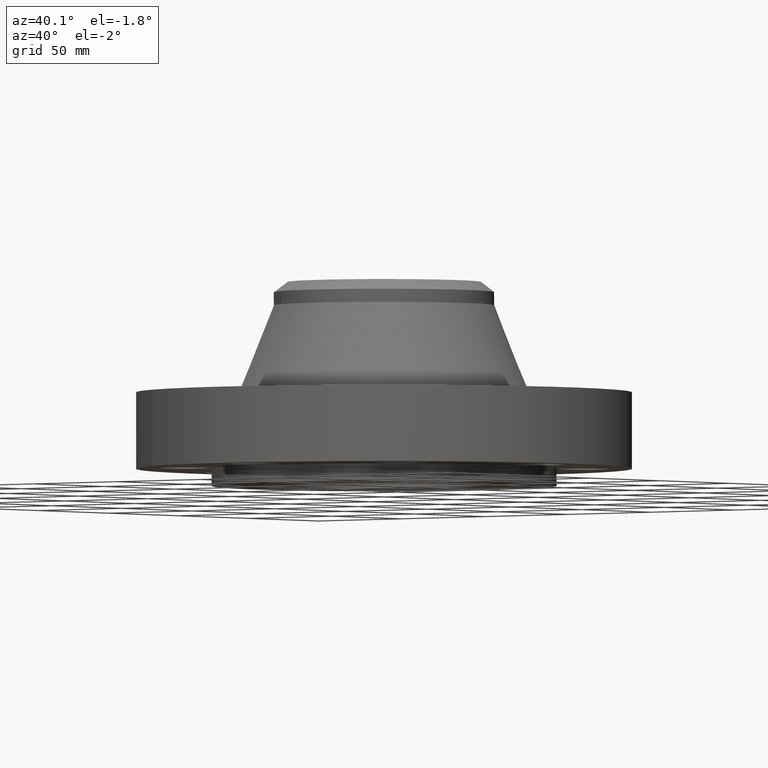
[diagram: clean part render]
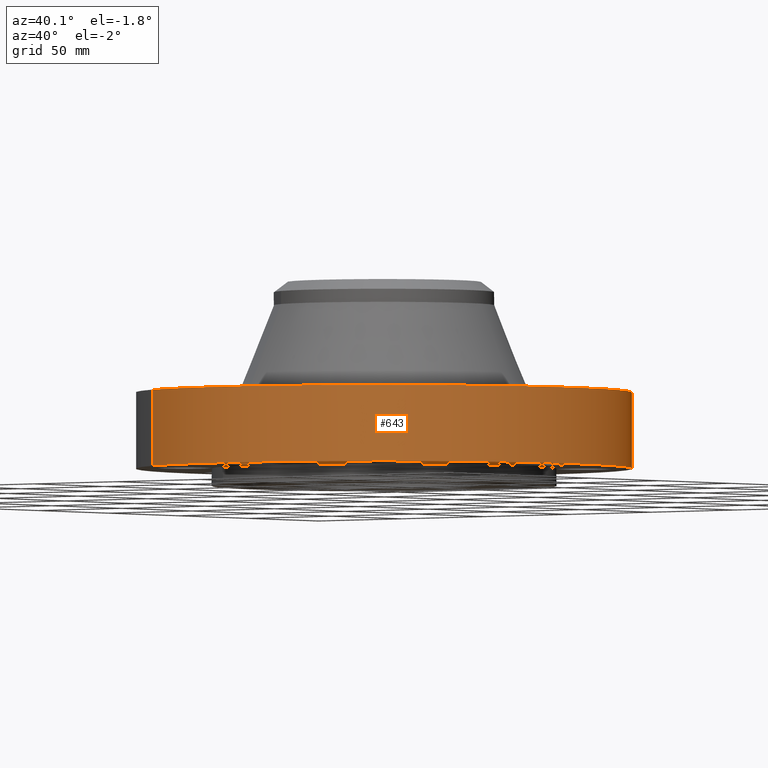
[diagram: same view with one face highlighted and labeled with its STEP entity id]
A machine part, auxiliary view. The second image highlights one B-rep face of the part: STEP entity #643.
In plain terms, the highlighted cylindrical surface (partial cylindrical patch) has radius 114.3 mm, axis along (0, 0, -1).
Its self-contained STEP definition (entity closure, byte-faithful):
#154=AXIS2_PLACEMENT_3D('Circle Axis2P3D',#152,#153,$) ;
#413=AXIS2_PLACEMENT_3D('Circle Axis2P3D',#411,#412,$) ;
#635=AXIS2_PLACEMENT_3D('Cylinder Axis2P3D',#632,#633,#634) ;
#147=CARTESIAN_POINT('Vertex',(-2.15741492373,-3.94912152852,2.61916123086E-011)) ;
#149=CARTESIAN_POINT('Vertex',(2.15741492373,3.94912152852,2.61916123086E-011)) ;
#152=CARTESIAN_POINT('Axis2P3D Location',(1.1189649382E-015,1.00007491352E-011,0.)) ;
#411=CARTESIAN_POINT('Axis2P3D Location',(1.1189649382E-015,-9.33216758463E-012,1.38000000001)) ;
#415=CARTESIAN_POINT('Vertex',(2.15741492373,3.94912152852,1.38)) ;
#417=CARTESIAN_POINT('Vertex',(-2.15741492373,-3.94912152852,1.38)) ;
#608=CARTESIAN_POINT('Line Origine',(-2.15741492373,-3.94912152852,0.690000000011)) ;
#613=CARTESIAN_POINT('Line Origine',(2.15741492373,3.94912152852,0.690000000011)) ;
#632=CARTESIAN_POINT('Axis2P3D Location',(0.,0.,1.53350000001)) ;
#153=DIRECTION('Axis2P3D Direction',(0.,0.,-0.0393700787402)) ;
#412=DIRECTION('Axis2P3D Direction',(0.,0.,-0.0393700787402)) ;
#609=DIRECTION('Vector Direction',(0.,0.,-0.0393700787402)) ;
#614=DIRECTION('Vector Direction',(0.,0.,-0.0393700787402)) ;
#633=DIRECTION('Axis2P3D Direction',(0.,0.,-0.0393700787402)) ;
#634=DIRECTION('Axis2P3D XDirection',(0.0188750212049,0.0345504945626,0.)) ;
#610=VECTOR('Line Direction',#609,0.0393700787402) ;
#615=VECTOR('Line Direction',#614,0.0393700787402) ;
#638=ORIENTED_EDGE('',*,*,#156,.F.) ;
#639=ORIENTED_EDGE('',*,*,#617,.T.) ;
#640=ORIENTED_EDGE('',*,*,#419,.T.) ;
#641=ORIENTED_EDGE('',*,*,#612,.F.) ;
#643=ADVANCED_FACE('PartBody',(#642),#636,.T.) ;
#155=CIRCLE('generated circle',#154,4.50000000003) ;
#414=CIRCLE('generated circle',#413,4.50000000003) ;
#636=CYLINDRICAL_SURFACE('generated cylinder',#635,4.50000000002) ;
#156=EDGE_CURVE('',#150,#148,#155,.T.) ;
#419=EDGE_CURVE('',#416,#418,#414,.T.) ;
#612=EDGE_CURVE('',#148,#418,#611,.F.) ;
#617=EDGE_CURVE('',#150,#416,#616,.F.) ;
#637=EDGE_LOOP('',(#638,#639,#640,#641)) ;
#642=FACE_OUTER_BOUND('',#637,.T.) ;
#611=LINE('Line',#608,#610) ;
#616=LINE('Line',#613,#615) ;
#148=VERTEX_POINT('',#147) ;
#150=VERTEX_POINT('',#149) ;
#416=VERTEX_POINT('',#415) ;
#418=VERTEX_POINT('',#417) ;